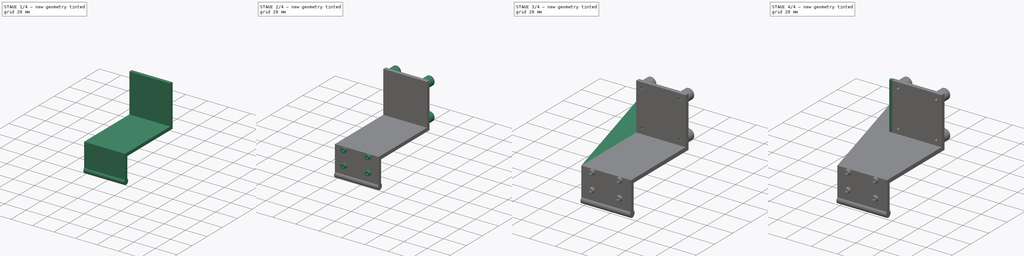
[diagram: build sequence overview — one tinted view per stage of 4, left to right]
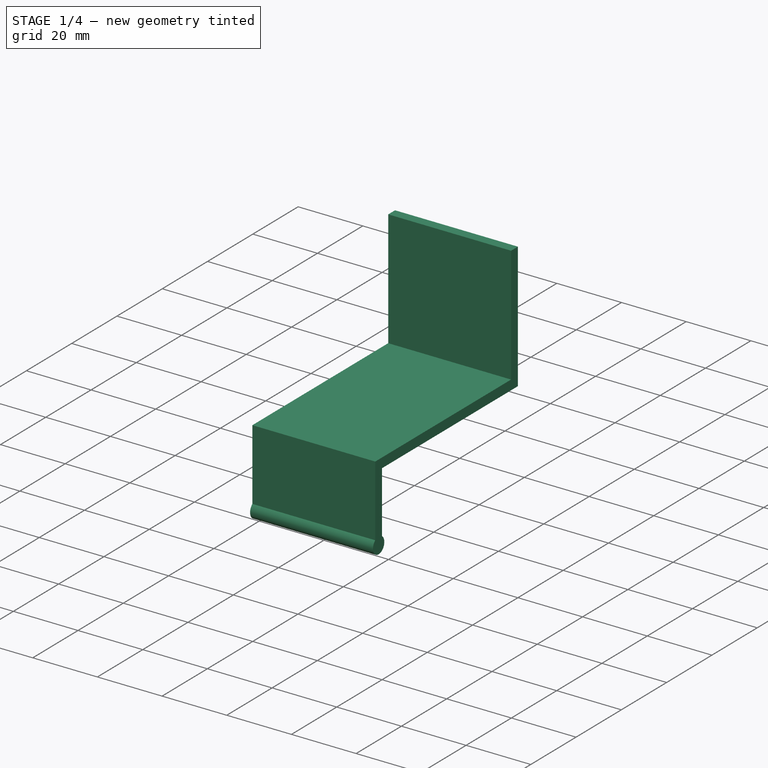
[diagram: stage 1 of 4 — iso view after this stage's code; geometry added in this stage tinted green]
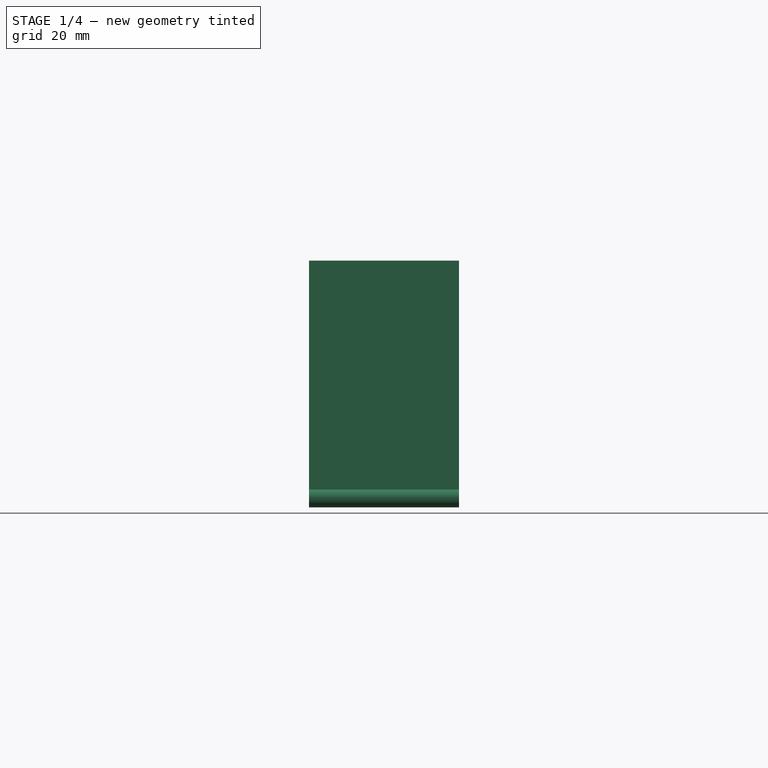
[diagram: stage 1 of 4 — front view after this stage's code; geometry added in this stage tinted green]
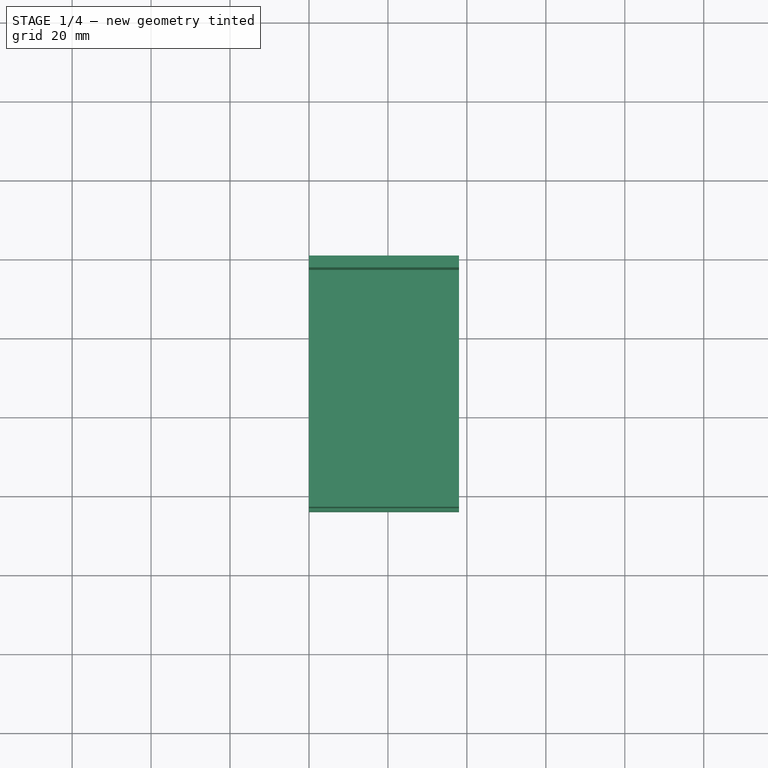
[diagram: stage 1 of 4 — top view after this stage's code; geometry added in this stage tinted green]
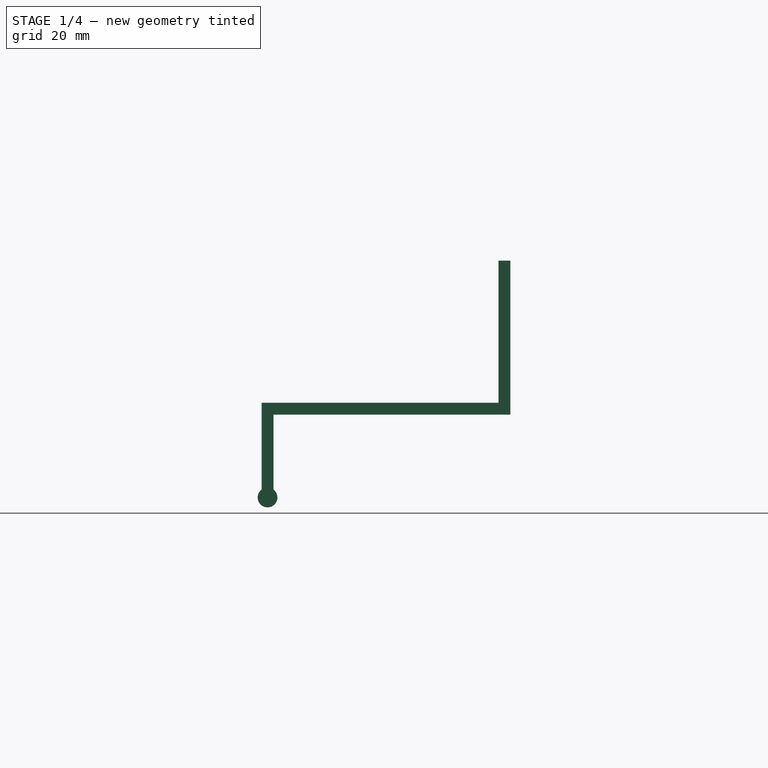
[diagram: stage 1 of 4 — right view after this stage's code; geometry added in this stage tinted green]
FCSTD DOCUMENT  (FreeCAD 0.17R8469 (Git))
Label: DAPrototypeInset
License: All rights reserved
LicenseURL: http://en.wikipedia.org/wiki/All_rights_reserved
objects: Sketcher::SketchObject×10, PartDesign::Pad×7, PartDesign::Pocket×3
note: 30 computed .brp shape members not serialized (recipe doc carries the construction recipe); baked Part::Feature solids carry a one-line shape summary decoded from their .brp

FEATURE [Sketcher::SketchObject] Sketch
  MapMode = 5
  Placement = pos=(0,0,0) rot=(0.57735,0.57735,0.57735;2.0944rad)
  sketch-geometry (9):
    g0: LineSegment StartX=-63 StartY=3 StartZ=0 EndX=-63 EndY=-23 EndZ=0
    g1: LineSegment StartX=-63 StartY=-23 StartZ=0 EndX=-60 EndY=-23 EndZ=0
    g2: LineSegment StartX=-60 StartY=-23 StartZ=0 EndX=-60 EndY=0 EndZ=0
    g3: LineSegment StartX=-60 StartY=0 StartZ=0 EndX=0 EndY=0 EndZ=0
    g4: LineSegment StartX=0 StartY=0 StartZ=0 EndX=0 EndY=39 EndZ=0
    g5: LineSegment StartX=0 StartY=39 StartZ=0 EndX=-3 EndY=39 EndZ=0
    g6: LineSegment StartX=-3 StartY=39 StartZ=0 EndX=-3 EndY=3 EndZ=0
    g7: LineSegment StartX=-3 StartY=3 StartZ=0 EndX=-63 EndY=3 EndZ=0
    g8: LineSegment [constr] StartX=-3 StartY=3 StartZ=0 EndX=-3 EndY=0 EndZ=0
  constraints (26):
    c: Vertical(g0)
    c: Coincident(g1,g0)
    c: Horizontal(g1)
    c: Coincident(g2,g1)
    c: Vertical(g2)
    c: Coincident(g3,g2)
    c: Horizontal(g3)
    c: Coincident(g4,g3)
    c: Vertical(g4)
    c: Coincident(g5,g4)
    c: Horizontal(g5)
    c: Coincident(g6,g5)
    c: Vertical(g6)
    c: Coincident(g7,g6)
    c: Horizontal(g7)
    c: Coincident(g0,g7)
    c: Coincident(g8,g6)
    c: Vertical(g8)
    c: PointOnObject(g8,g3)
    c: Equal(g1,g8)
    c: Equal(g8,g5)
    c: Distance(g1) = 3
    c: Coincident(g3,g-1)
    c: Distance(g0) = 26
    c: Distance(g6) = 36
    c: Distance(g7) = 60
FEATURE [PartDesign::Pad] Pad
  Length = 38
  Length2 = 100
  Placement = pos=(0,0,0) rot=(0.57735,0.57735,0.57735;2.0944rad)
  Profile = -> Sketch
  Type = 0
FEATURE [Sketcher::SketchObject] Sketch001
  ExternalGeometry = -> [Pad]
  MapMode = 5
  Placement = pos=(38,0,0) rot=(0.57735,0.57735,0.57735;2.0944rad)
  Support = -> [Pad]
  sketch-geometry (3):
    g0: Circle CenterX=-61.5 CenterY=-21 CenterZ=0 NormalX=0 NormalY=0 NormalZ=1 Radius=2.5
    g1: LineSegment [constr] StartX=-63 StartY=-23 StartZ=0 EndX=-61.5 EndY=-21 EndZ=0
    g2: LineSegment [constr] StartX=-61.5 StartY=-21 StartZ=0 EndX=-60 EndY=-23 EndZ=0
  constraints (7):
    c: Coincident(g1,g-3)
    c: Coincident(g2,g1)
    c: Coincident(g2,g-3)
    c: Equal(g2,g1)
    c: Coincident(g1,g0)
    c: Radius(g0) = 2.5
    c: PointOnObject(g1,g0)
FEATURE [PartDesign::Pad] Pad001
  Length = 38
  Length2 = 100
  Placement = pos=(0,0,0) rot=(0.57735,0.57735,0.57735;2.0944rad)
  Profile = -> Sketch001
  Reversed = true
  Type = 0
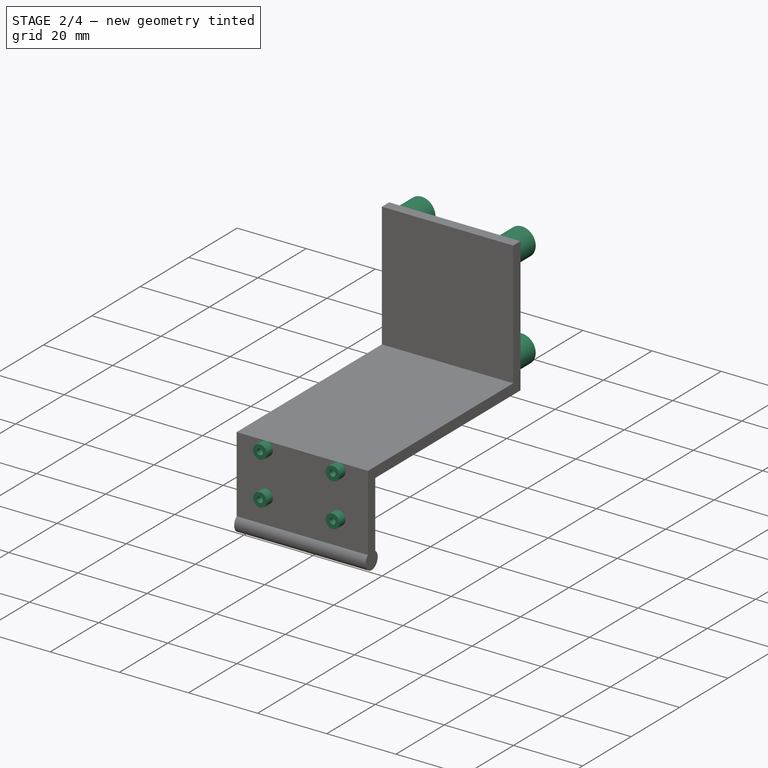
[diagram: stage 2 of 4 — iso view after this stage's code; geometry added in this stage tinted green]
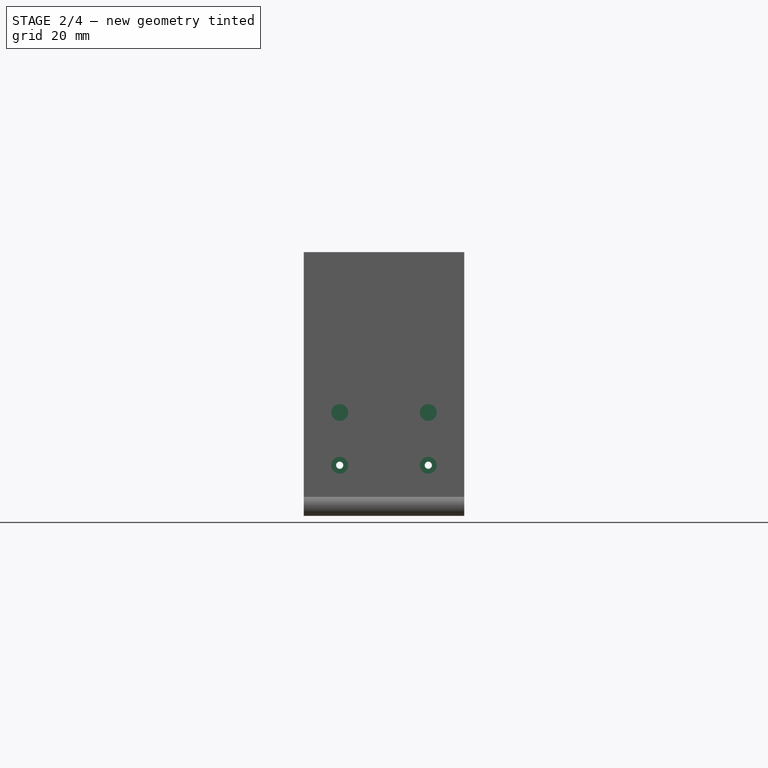
[diagram: stage 2 of 4 — front view after this stage's code; geometry added in this stage tinted green]
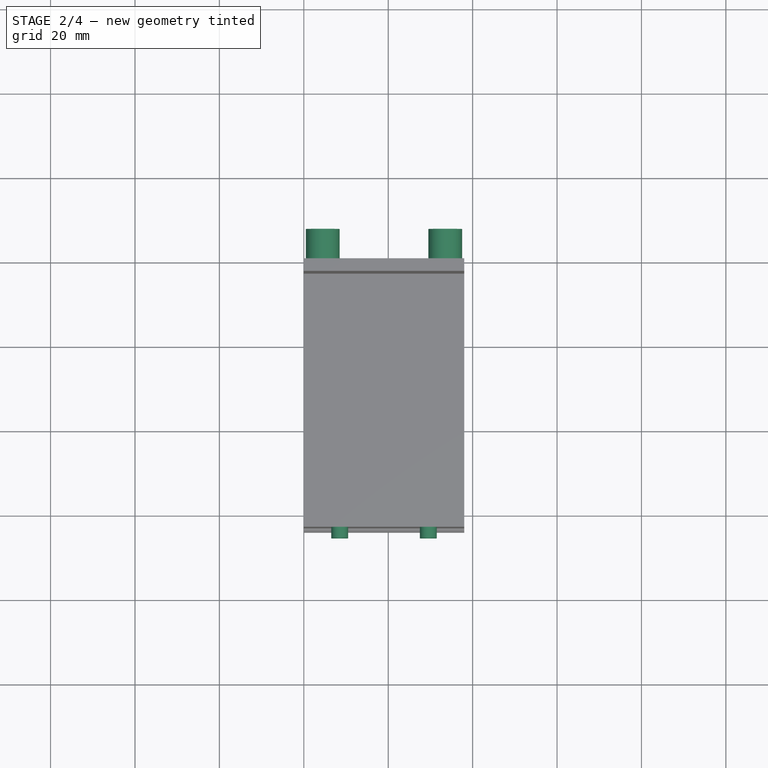
[diagram: stage 2 of 4 — top view after this stage's code; geometry added in this stage tinted green]
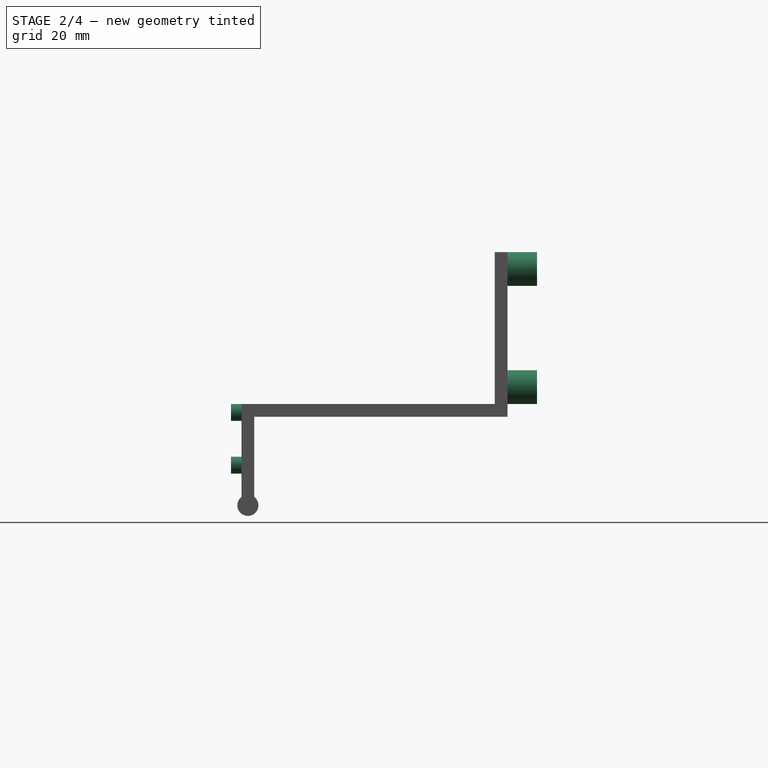
[diagram: stage 2 of 4 — right view after this stage's code; geometry added in this stage tinted green]
FEATURE [Sketcher::SketchObject] Sketch002
  ExternalGeometry = -> [Pad001]
  MapMode = 5
  Placement = pos=(0,-63,0) rot=(0.57735,0.57735,-0.57735;2.0944rad)
  Support = -> [Pad001]
  sketch-geometry (10):
    g0: Circle CenterX=-1 CenterY=29.5 CenterZ=0 NormalX=0 NormalY=0 NormalZ=1 Radius=2
    g1: Circle CenterX=-1 CenterY=8.5 CenterZ=0 NormalX=0 NormalY=0 NormalZ=1 Radius=2
    g2: Circle CenterX=11.5 CenterY=8.5 CenterZ=0 NormalX=0 NormalY=0 NormalZ=1 Radius=2
    g3: Circle CenterX=11.5 CenterY=29.5 CenterZ=0 NormalX=0 NormalY=0 NormalZ=1 Radius=2
    g4: LineSegment [constr] StartX=11.5 StartY=29.5 StartZ=0 EndX=-1 EndY=29.5 EndZ=0
    g5: LineSegment [constr] StartX=-1 StartY=29.5 StartZ=0 EndX=-1 EndY=8.5 EndZ=0
    g6: LineSegment [constr] StartX=-1 StartY=8.5 StartZ=0 EndX=11.5 EndY=8.5 EndZ=0
    g7: LineSegment [constr] StartX=11.5 StartY=8.5 StartZ=0 EndX=11.5 EndY=29.5 EndZ=0
    g8: LineSegment [constr] StartX=-3 StartY=0 StartZ=0 EndX=-1 EndY=8.5 EndZ=0
    g9: LineSegment [constr] StartX=-1 StartY=29.5 StartZ=0 EndX=-3 EndY=38 EndZ=0
  constraints (24):
    c: Coincident(g4,g5)
    c: Coincident(g5,g6)
    c: Coincident(g6,g7)
    c: Coincident(g7,g4)
    c: Horizontal(g4)
    c: Horizontal(g6)
    c: Vertical(g5)
    c: Vertical(g7)
    c: Coincident(g0,g4)
    c: Coincident(g3,g4)
    c: Coincident(g2,g6)
    c: Coincident(g1,g5)
    c: Radius(g2) = 2
    c: Equal(g2,g1)
    c: Equal(g2,g0)
    c: Equal(g2,g3)
    c: Distance(g4) = 12.5
    c: Distance(g7) = 21
    c: Tangent(g0,g-3)
    c: Coincident(g8,g-3)
    c: Coincident(g8,g1)
    c: Coincident(g9,g0)
    c: Coincident(g9,g-3)
    c: Equal(g9,g8)
FEATURE [PartDesign::Pad] Pad002
  Length = 2.5
  Length2 = 100
  Placement = pos=(0,0,0) rot=(0.57735,0.57735,0.57735;2.0944rad)
  Profile = -> Sketch002
  Type = 0
FEATURE [Sketcher::SketchObject] Sketch003
  ExternalGeometry = -> [Pad002]
  MapMode = 5
  Placement = pos=(0,-65.5,0) rot=(0.57735,0.57735,-0.57735;2.0944rad)
  Support = -> [Pad002]
  sketch-geometry (4):
    g0: Circle CenterX=11.5 CenterY=29.5 CenterZ=0 NormalX=0 NormalY=0 NormalZ=1 Radius=0.85
    g1: Circle CenterX=11.5 CenterY=8.5 CenterZ=0 NormalX=0 NormalY=0 NormalZ=1 Radius=0.85
    g2: Circle CenterX=-1 CenterY=29.5 CenterZ=0 NormalX=0 NormalY=0 NormalZ=1 Radius=0.85
    g3: Circle CenterX=-1 CenterY=8.5 CenterZ=0 NormalX=0 NormalY=0 NormalZ=1 Radius=0.85
  constraints (8):
    c: Radius(g0) = 0.85
    c: Equal(g0,g1)
    c: Equal(g0,g2)
    c: Equal(g0,g3)
    c: Coincident(g3,g-3)
    c: Coincident(g1,g-4)
    c: Coincident(g2,g-6)
    c: Coincident(g0,g-5)
FEATURE [PartDesign::Pocket] Pocket
  Length = 10
  Placement = pos=(0,0,0) rot=(0.57735,0.57735,0.57735;2.0944rad)
  Profile = -> Sketch003
  Type = 0
FEATURE [Sketcher::SketchObject] Sketch004
  ExternalGeometry = -> [Pocket]
  MapMode = 5
  Placement = pos=(0,-3,0) rot=(0.57735,0.57735,-0.57735;2.0944rad)
  Support = -> [Pocket]
  sketch-geometry (10):
    g0: Circle CenterX=-7 CenterY=33.5 CenterZ=0 NormalX=0 NormalY=0 NormalZ=1 Radius=4
    g1: Circle CenterX=-7 CenterY=4.5 CenterZ=0 NormalX=0 NormalY=0 NormalZ=1 Radius=4
    g2: Circle CenterX=-35 CenterY=33.5 CenterZ=0 NormalX=0 NormalY=0 NormalZ=1 Radius=4
    g3: Circle CenterX=-35 CenterY=4.5 CenterZ=0 NormalX=0 NormalY=0 NormalZ=1 Radius=4
    g4: LineSegment [constr] StartX=-7 StartY=33.5 StartZ=0 EndX=-35 EndY=33.5 EndZ=0
    g5: LineSegment [constr] StartX=-35 StartY=33.5 StartZ=0 EndX=-35 EndY=4.5 EndZ=0
    g6: LineSegment [constr] StartX=-35 StartY=4.5 StartZ=0 EndX=-7 EndY=4.5 EndZ=0
    g7: LineSegment [constr] StartX=-7 StartY=4.5 StartZ=0 EndX=-7 EndY=33.5 EndZ=0
    g8: LineSegment [constr] StartX=-39 StartY=38 StartZ=0 EndX=-35 EndY=33.5 EndZ=0
    g9: LineSegment [constr] StartX=-35 StartY=4.5 StartZ=0 EndX=-39 EndY=0 EndZ=0
  constraints (24):
    c: Radius(g0) = 4
    c: Equal(g0,g1)
    c: Equal(g0,g2)
    c: Equal(g0,g3)
    c: Coincident(g4,g5)
    c: Coincident(g5,g6)
    c: Coincident(g6,g7)
    c: Coincident(g7,g4)
    c: Horizontal(g4)
    c: Horizontal(g6)
    c: Vertical(g5)
    c: Vertical(g7)
    c: Coincident(g0,g4)
    c: Coincident(g1,g6)
    c: Coincident(g2,g4)
    c: Coincident(g3,g5)
    c: Coincident(g8,g-3)
    c: Coincident(g8,g2)
    c: Coincident(g9,g3)
    c: Coincident(g9,g-3)
    c: Equal(g9,g8)
    c: Tangent(g2,g-3)
    c: Distance(g5) = 29
    c: Distance(g4) = 28
FEATURE [PartDesign::Pad] Pad003
  Length = 10
  Length2 = 100
  Placement = pos=(0,0,0) rot=(0.57735,0.57735,0.57735;2.0944rad)
  Profile = -> Sketch004
  Reversed = true
  Type = 0
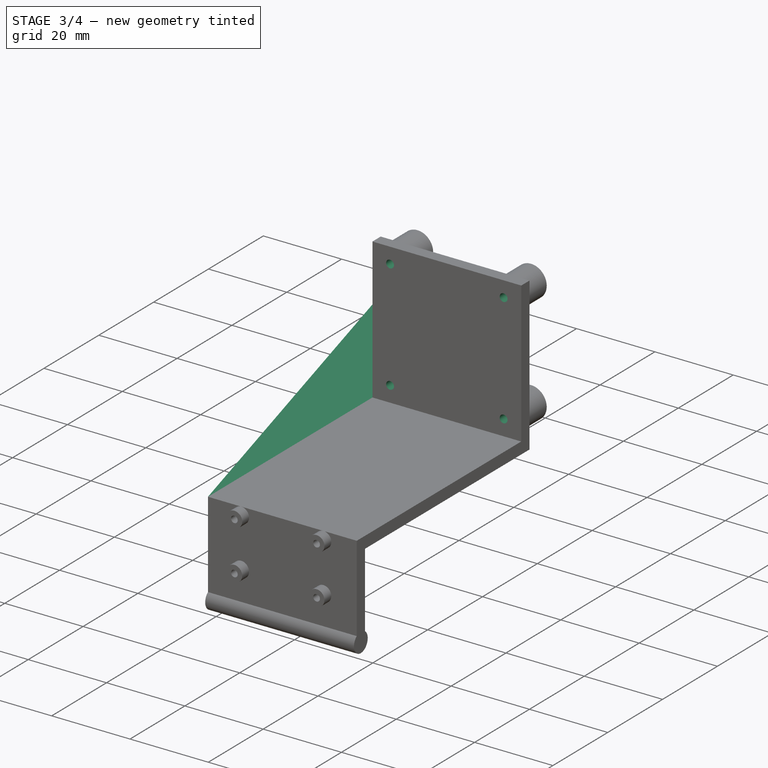
[diagram: stage 3 of 4 — iso view after this stage's code; geometry added in this stage tinted green]
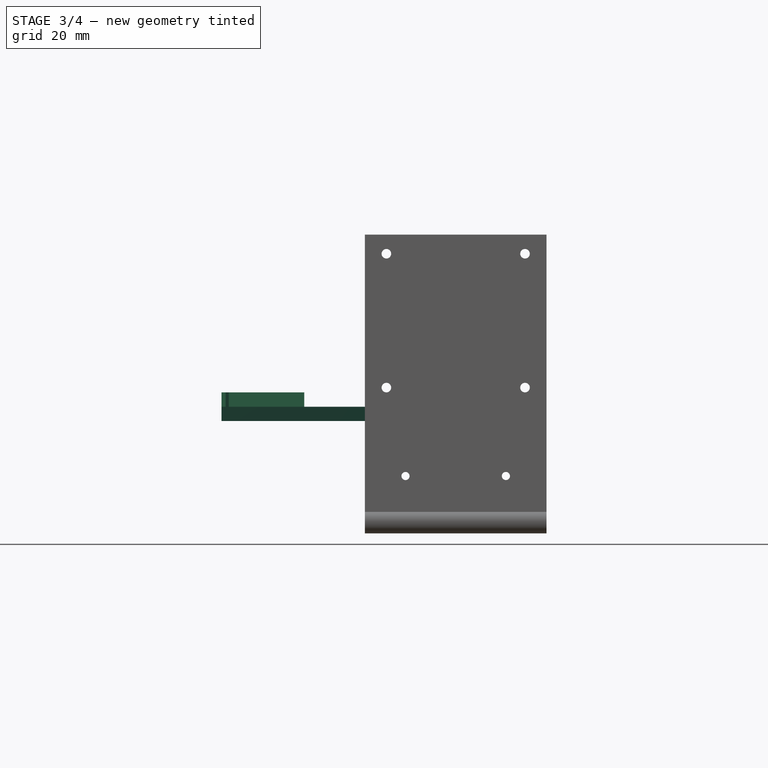
[diagram: stage 3 of 4 — front view after this stage's code; geometry added in this stage tinted green]
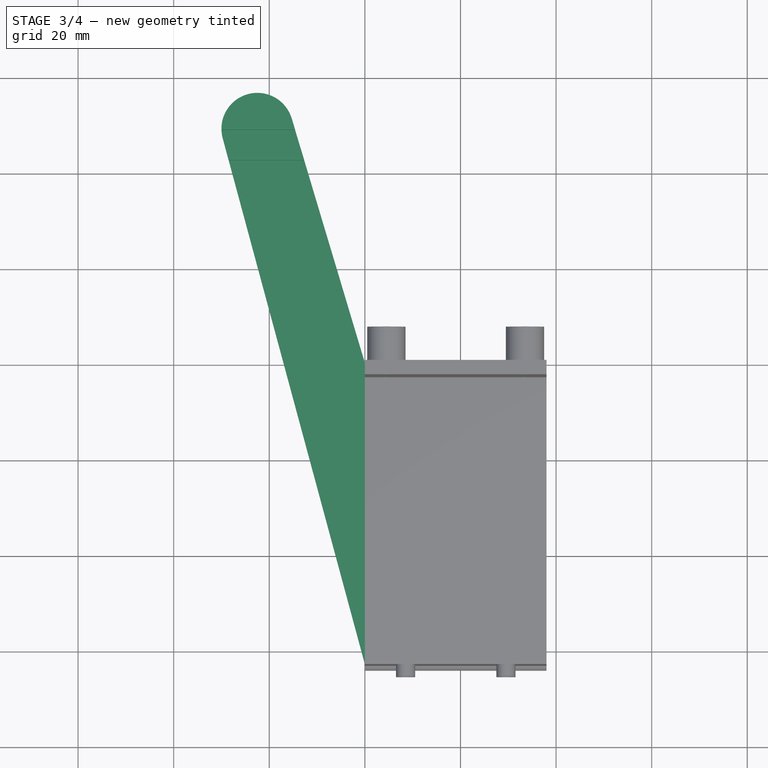
[diagram: stage 3 of 4 — top view after this stage's code; geometry added in this stage tinted green]
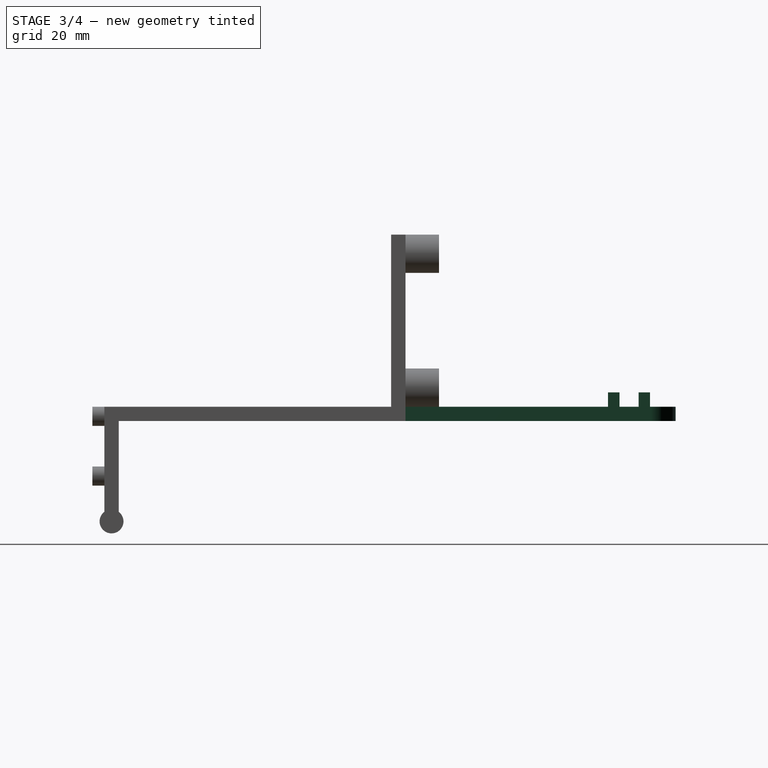
[diagram: stage 3 of 4 — right view after this stage's code; geometry added in this stage tinted green]
FEATURE [Sketcher::SketchObject] Sketch005
  ExternalGeometry = -> [Pad003]
  MapMode = 5
  Placement = pos=(0,-3,0) rot=(0.57735,0.57735,-0.57735;2.0944rad)
  Support = -> [Pad003]
  sketch-geometry (4):
    g0: Circle CenterX=-35 CenterY=33.5 CenterZ=0 NormalX=0 NormalY=0 NormalZ=1 Radius=1
    g1: Circle CenterX=-7 CenterY=33.5 CenterZ=0 NormalX=0 NormalY=0 NormalZ=1 Radius=1
    g2: Circle CenterX=-7 CenterY=4.5 CenterZ=0 NormalX=0 NormalY=0 NormalZ=1 Radius=1
    g3: Circle CenterX=-35 CenterY=4.5 CenterZ=0 NormalX=0 NormalY=0 NormalZ=1 Radius=1
  constraints (8):
    c: Coincident(g3,g-4)
    c: Coincident(g2,g-5)
    c: Coincident(g-3,g0)
    c: Coincident(g1,g-6)
    c: Radius(g2) = 1
    c: Equal(g2,g3)
    c: Equal(g2,g0)
    c: Equal(g2,g1)
FEATURE [PartDesign::Pocket] Pocket001
  Length = 5
  Placement = pos=(0,0,0) rot=(0.57735,0.57735,0.57735;2.0944rad)
  Profile = -> Sketch005
  Type = 1
FEATURE [Sketcher::SketchObject] Sketch006
  ExternalGeometry = -> [Pocket001]
  MapMode = 5
  Placement = pos=(0,0,0) rot=(0.707107,0.707107,0;3.14159rad)
  Support = -> [Pocket001]
  sketch-geometry (8):
    g0: LineSegment StartX=0 StartY=0 StartZ=0 EndX=51.1512 EndY=-15.3151 EndZ=0
    g1: LineSegment StartX=-63 StartY=0 StartZ=0 EndX=47.0433 EndY=-29.7402 EndZ=0
    g2: ArcOfCircle CenterX=49 CenterY=-22.5 CenterZ=0 NormalX=0 NormalY=0 NormalZ=1 Radius=7.5 StartAngle=4.44844 EndAngle=7.56306
    g3: LineSegment StartX=-63 StartY=0 StartZ=0 EndX=0 EndY=0 EndZ=0
    g4: LineSegment [constr] StartX=49 StartY=-22.5 StartZ=0 EndX=-63 EndY=-22.5 EndZ=0
    g5: LineSegment [constr] StartX=-63 StartY=-22.5 StartZ=0 EndX=-63 EndY=0 EndZ=0
    g6: LineSegment [constr] StartX=-63 StartY=0 StartZ=0 EndX=49 EndY=0 EndZ=0
    g7: LineSegment [constr] StartX=49 StartY=0 StartZ=0 EndX=49 EndY=-22.5 EndZ=0
  constraints (21):
    c: Coincident(g0,g-1)
    c: Coincident(g1,g-4)
    c: Coincident(g0,g2)
    c: Coincident(g2,g1)
    c: Tangent(g2,g1)
    c: Tangent(g2,g0)
    c: Coincident(g3,g-1)
    c: Radius(g2) = 7.5
    c: Coincident(g3,g1)
    c: Coincident(g4,g5)
    c: Coincident(g5,g6)
    c: Coincident(g6,g7)
    c: Coincident(g7,g4)
    c: Horizontal(g4)
    c: Horizontal(g6)
    c: Vertical(g5)
    c: Vertical(g7)
    c: Coincident(g4,g2)
    c: Coincident(g5,g1)
    c: Distance(g7) = 22.5
    c: Distance(g4) = 112
FEATURE [PartDesign::Pad] Pad004
  Length = 3
  Length2 = 100
  Placement = pos=(0,0,0) rot=(0.57735,0.57735,0.57735;2.0944rad)
  Profile = -> Sketch006
  Reversed = true
  Type = 0
FEATURE [Sketcher::SketchObject] Sketch007
  ExternalGeometry = -> [Pad004]
  MapMode = 5
  Placement = pos=(0,0,3) rot=(0,0,-1;1.5708rad)
  Support = -> [Pad004]
  sketch-geometry (8):
    g0: LineSegment StartX=-51.1512 StartY=-15.3151 StartZ=0 EndX=-48.7563 EndY=-14.5981 EndZ=0
    g1: LineSegment StartX=-48.7563 StartY=-14.5981 StartZ=0 EndX=-48.7563 EndY=-29.996 EndZ=0
    g2: LineSegment StartX=-51.1512 StartY=-29.6849 StartZ=0 EndX=-51.1512 EndY=-15.3151 EndZ=0
    g3: LineSegment StartX=-44.7563 StartY=-13.4004 StartZ=0 EndX=-42.3613 EndY=-12.6834 EndZ=0
    g4: LineSegment StartX=-42.3613 StartY=-12.6834 StartZ=0 EndX=-42.3613 EndY=-28.4749 EndZ=0
    g5: LineSegment StartX=-42.3613 StartY=-28.4749 StartZ=0 EndX=-44.7563 EndY=-29.1222 EndZ=0
    g6: LineSegment StartX=-44.7563 StartY=-29.1222 StartZ=0 EndX=-44.7563 EndY=-13.4004 EndZ=0
    g7: ArcOfCircle CenterX=-49 CenterY=-22.5 CenterZ=0 NormalX=0 NormalY=0 NormalZ=1 Radius=7.5 StartAngle=4.42147 EndAngle=4.74489
  constraints (24):
    c: Coincident(g0,g1)
    c: Coincident(g2,g0)
    c: Vertical(g1)
    c: Vertical(g2)
    c: Coincident(g3,g4)
    c: Coincident(g4,g5)
    c: Coincident(g5,g6)
    c: Coincident(g6,g3)
    c: Vertical(g4)
    c: Vertical(g6)
    c: PointOnObject(g3,g-5)
    c: PointOnObject(g4,g-4)
    c: Equal(g0,g3)
    c: DistanceX(g0,g3) = 4
    c: PointOnObject(g2,g-3)
    c: Distance(g0) = 2.5
    c: Coincident(g0,g-5)
    c: PointOnObject(g0,g-5)
    c: PointOnObject(g3,g-5)
    c: PointOnObject(g5,g-4)
    c: PointOnObject(g1,g-3)
    c: Coincident(g7,g2)
    c: Equal(g7,g-3)
    c: Coincident(g7,g1)
FEATURE [PartDesign::Pad] Pad005
  Length = 3
  Length2 = 100
  Placement = pos=(0,0,0) rot=(0.57735,0.57735,0.57735;2.0944rad)
  Profile = -> Sketch007
  Type = 0
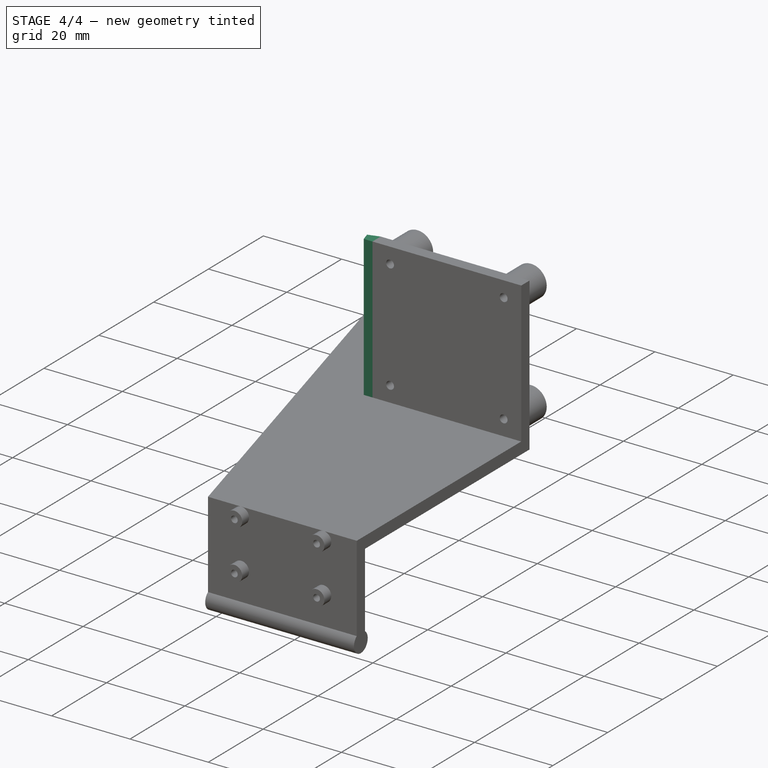
[diagram: stage 4 of 4 — iso view after this stage's code; geometry added in this stage tinted green]
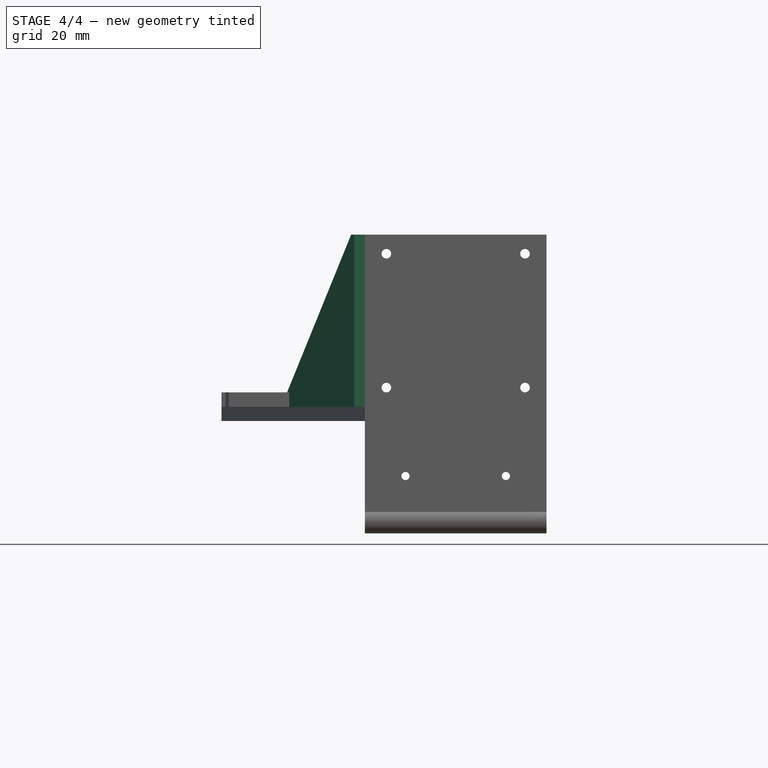
[diagram: stage 4 of 4 — front view after this stage's code; geometry added in this stage tinted green]
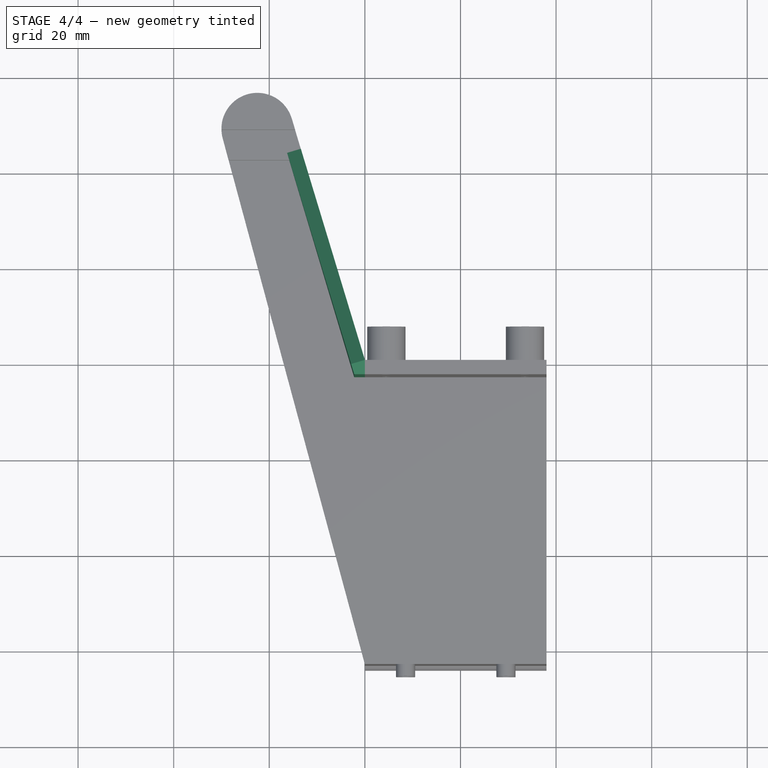
[diagram: stage 4 of 4 — top view after this stage's code; geometry added in this stage tinted green]
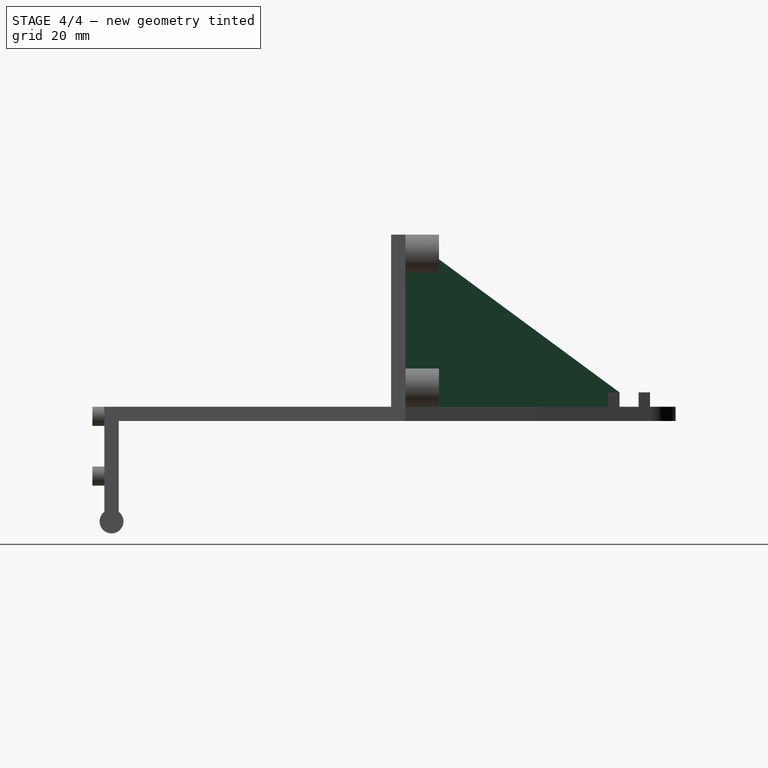
[diagram: stage 4 of 4 — right view after this stage's code; geometry added in this stage tinted green]
FEATURE [Sketcher::SketchObject] Sketch008
  ExternalGeometry = -> [Pad005]
  MapMode = 5
  Placement = pos=(0,0,0) rot=(0.46581,0.625708,0.625708;2.26975rad)
  Support = -> [Pad005]
  sketch-geometry (5):
    g0: LineSegment StartX=-2.87395 StartY=0 StartZ=0 EndX=46.7193 EndY=0 EndZ=0
    g1: LineSegment StartX=46.7193 StartY=6 StartZ=0 EndX=0 EndY=39 EndZ=0
    g2: LineSegment StartX=0 StartY=39 StartZ=0 EndX=-2.87395 EndY=39 EndZ=0
    g3: LineSegment StartX=-2.87395 StartY=39 StartZ=0 EndX=-2.87395 EndY=0 EndZ=0
    g4: LineSegment StartX=46.7193 StartY=0 StartZ=0 EndX=46.7193 EndY=6 EndZ=0
  constraints (13):
    c: Coincident(g2,g3)
    c: Coincident(g3,g0)
    c: Horizontal(g0)
    c: Horizontal(g2)
    c: Vertical(g3)
    c: PointOnObject(g0,g-1)
    c: Coincident(g2,g-5)
    c: Coincident(g1,g2)
    c: Coincident(g1,g-7)
    c: Coincident(g1,g-4)
    c: Coincident(g4,g0)
    c: Vertical(g4)
    c: Coincident(g4,g1)
FEATURE [PartDesign::Pad] Pad006
  Length = 3
  Length2 = 100
  Placement = pos=(0,0,0) rot=(0.57735,0.57735,0.57735;2.0944rad)
  Profile = -> Sketch008
  Reversed = true
  Type = 0
FEATURE [Sketcher::SketchObject] Sketch009
  ExternalGeometry = -> [Pad006]
  MapMode = 5
  Placement = pos=(38,0,0) rot=(0.57735,0.57735,0.57735;2.0944rad)
  Support = -> [Pad006]
  sketch-geometry (4):
    g0: LineSegment StartX=-3 StartY=3 StartZ=0 EndX=-63 EndY=3 EndZ=0
    g1: LineSegment StartX=-63 StartY=3 StartZ=0 EndX=-63 EndY=39 EndZ=0
    g2: LineSegment StartX=-63 StartY=39 StartZ=0 EndX=-3 EndY=39 EndZ=0
    g3: LineSegment StartX=-3 StartY=39 StartZ=0 EndX=-3 EndY=3 EndZ=0
  constraints (11):
    c: Coincident(g0,g1)
    c: Coincident(g1,g2)
    c: Coincident(g2,g3)
    c: Coincident(g3,g0)
    c: Horizontal(g0)
    c: Horizontal(g2)
    c: Vertical(g1)
    c: Vertical(g3)
    c: Coincident(g0,g-4)
    c: Coincident(g0,g-4)
    c: Coincident(g2,g-3)
FEATURE [PartDesign::Pocket] Pocket002
  Length = 5
  Placement = pos=(0,0,0) rot=(0.57735,0.57735,0.57735;2.0944rad)
  Profile = -> Sketch009
  Type = 1
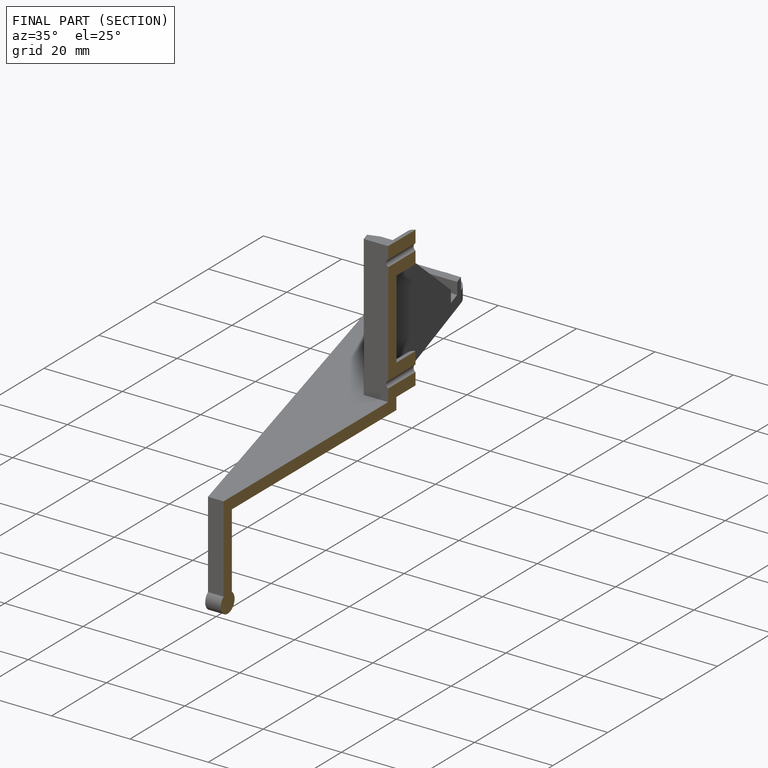
[diagram: finished part — half-section view (interior)]
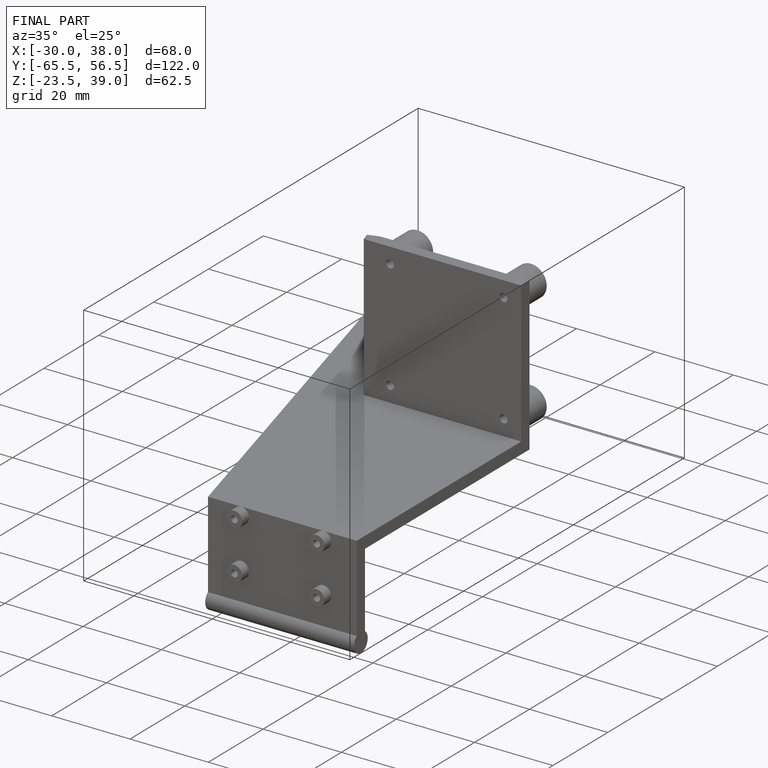
[diagram: finished part — iso view with bounding-box wireframe]
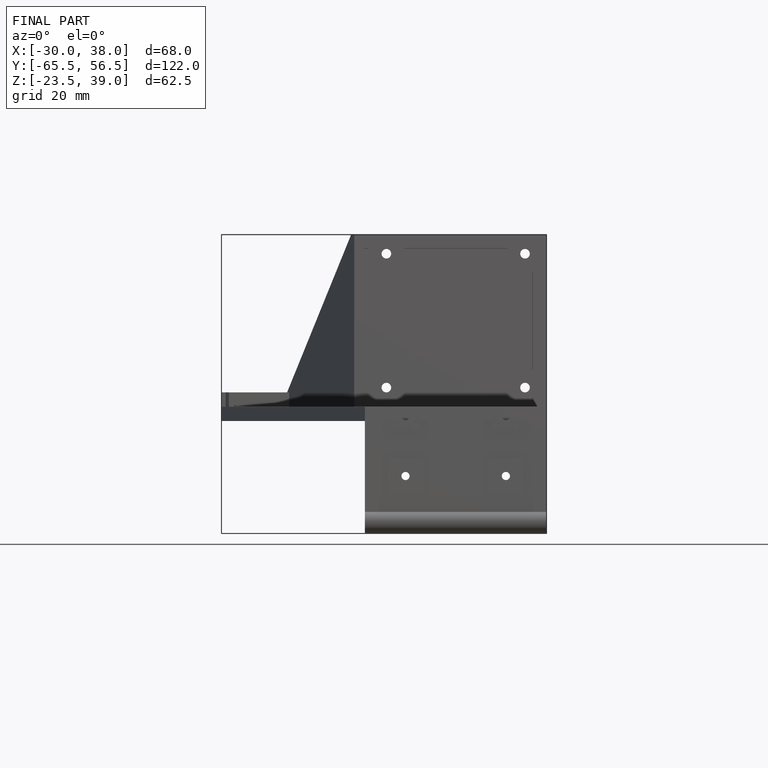
[diagram: finished part — front view with bounding-box wireframe]
